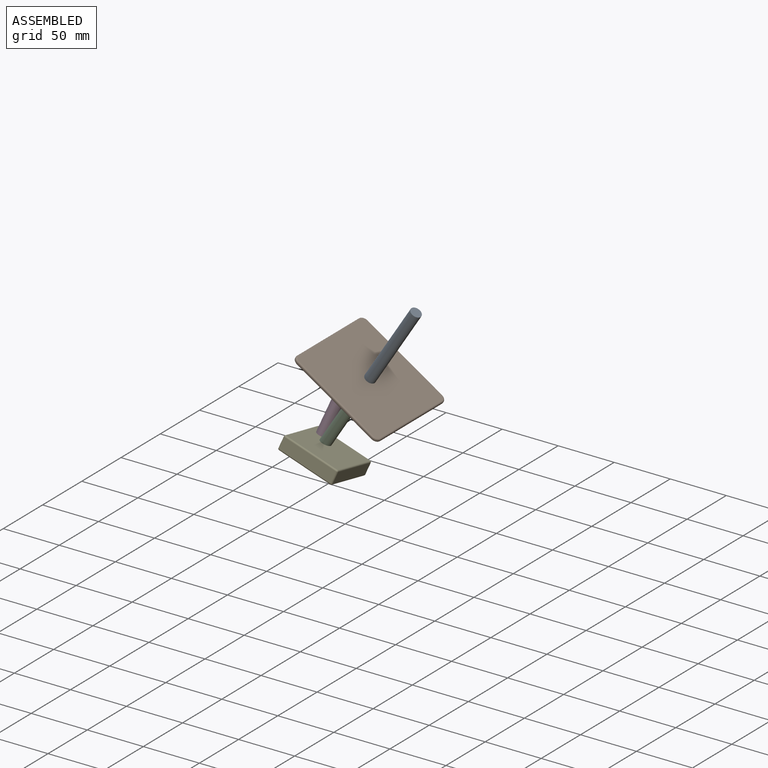
[diagram: assembled view]
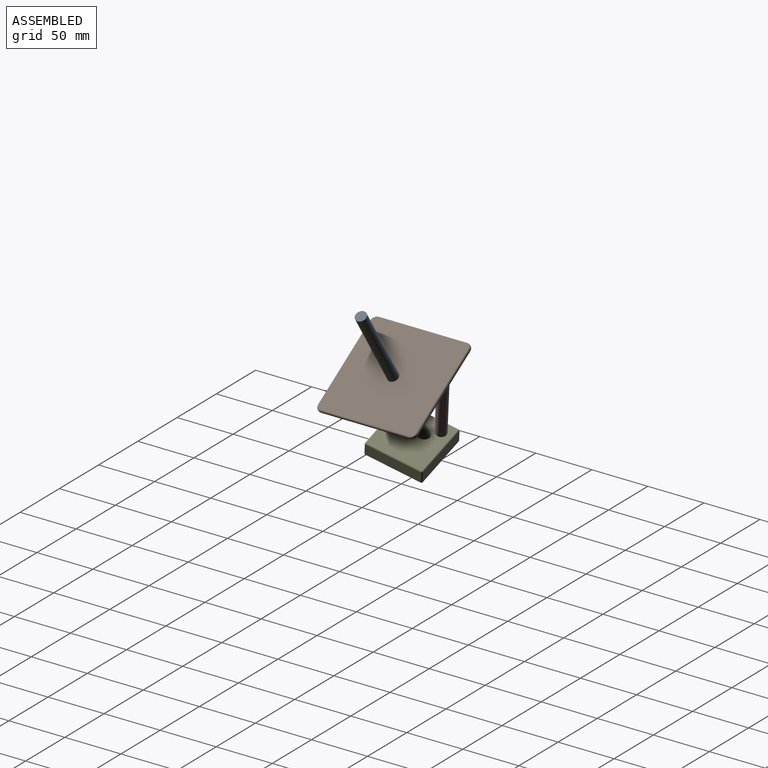
[diagram: assembled view, second angle]
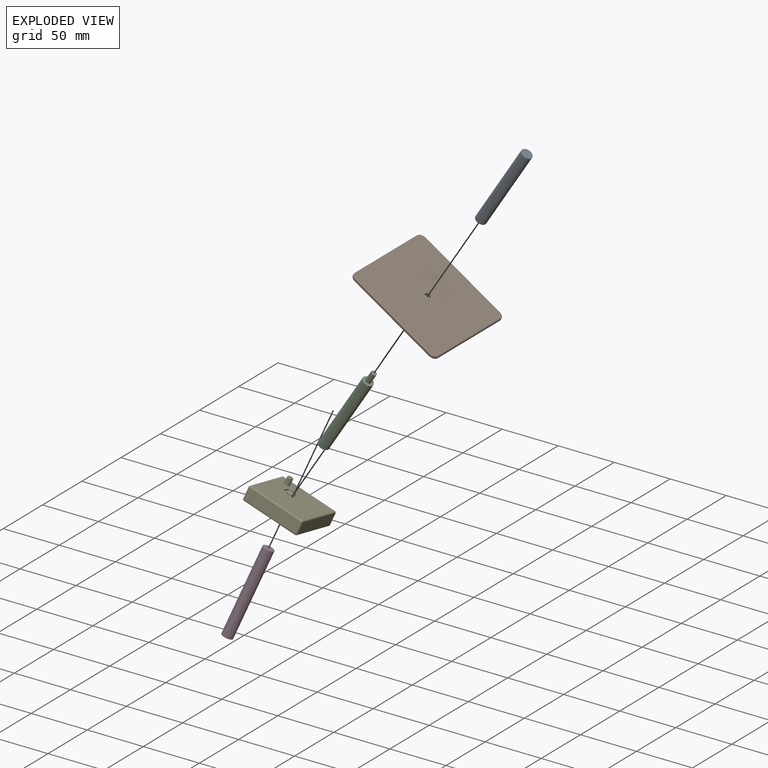
[diagram: exploded view]
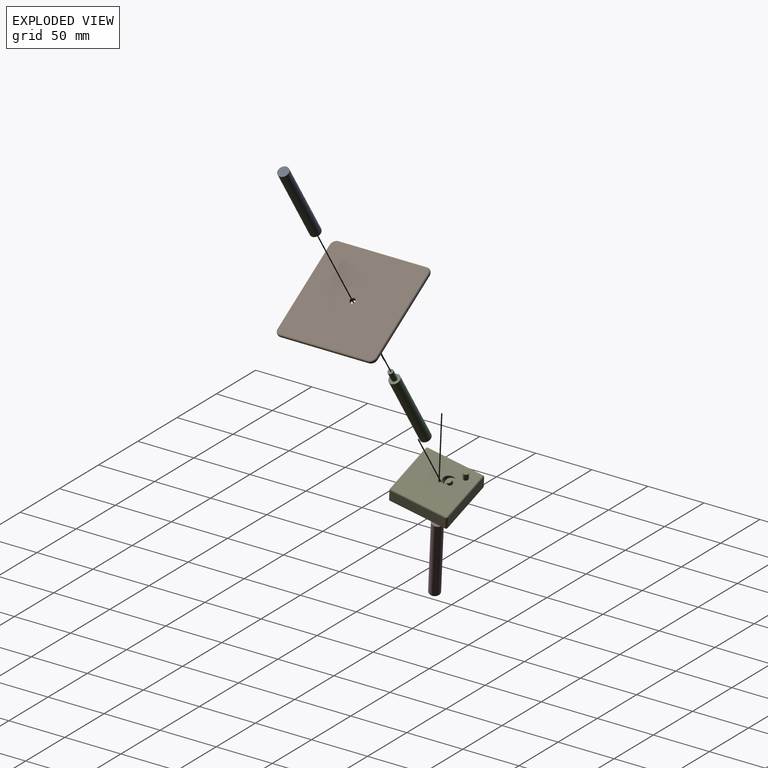
[diagram: exploded view, second angle]
ASSEMBLY  parts=5 mates=8
PART A: 5 faces, bbox 9.5x9.5x76.2 mm
  f0: cylinder r=4.76mm len=76.2mm, axis (0,0,-1), area 2280.2mm2, adj f1,f2
  f1: plane 9.53x9.53mm, normal (0,0,1), area 71.3mm2, adj f0
  f2: plane 9.53x9.53mm, normal (0,0,-1), area 52mm2, adj f0,f3
  f3: cylinder r=2.48mm len=6.35mm, axis (0,0,-1), area 98.8mm2, adj f2,f4
  f4: plane 4.95x4.95mm, normal (0,0,-1), area 19.3mm2, adj f3
PART B: 27 faces, bbox 89.7x89.7x3.2 mm
  f0: plane 78.74x0.64mm, normal (1,0,0), area 50mm2, adj f7,f10,f11,f22
  f1: plane 78.74x0.64mm, normal (0,1,0), area 50mm2, adj f7,f8,f14,f19
  f2: plane 78.74x0.64mm, normal (-1,0,0), area 50mm2, adj f8,f9,f18,f23
  f3: plane 78.74x0.64mm, normal (0,-1,0), area 50mm2, adj f9,f10,f15,f26
  f4: plane 86.36x86.36mm, normal (0,0,1), area 7426.3mm2, adj f6,f11,f12,f13,f14,f15,f16,f17
  f5: plane 86.36x86.36mm, normal (0,0,-1), area 7426.3mm2, adj f6,f19,f20,f21,f22,f23,f24,f25
  f6: cylinder r=2.48mm len=4.95mm, axis (0,0,1), area 49.4mm2, adj f4,f5
  f7: cylinder r=5.08mm len=5.08mm, axis (0,0,1), area 5.1mm2, adj f0,f1,f12,f20
  f8: cylinder r=5.08mm len=5.08mm, axis (0,0,-1), area 5.1mm2, adj f1,f2,f16,f21
  f9: cylinder r=5.08mm len=5.08mm, axis (0,0,1), area 5.1mm2, adj f2,f3,f17,f25
  f10: cylinder r=5.08mm len=5.08mm, axis (0,0,-1), area 5.1mm2, adj f0,f3,f13,f24
  f11: cylinder r=1.27mm len=78.74mm, axis (0,-1,0), area 157.1mm2, adj f0,f4,f12,f13
  f12: torus R=3.81mm, axis (0,0,1), area 14.5mm2, adj f4,f7,f11,f14
  f13: torus R=3.81mm, axis (0,0,1), area 14.5mm2, adj f4,f10,f11,f15
  f14: cylinder r=1.27mm len=78.74mm, axis (1,0,0), area 157.1mm2, adj f1,f4,f12,f16
  f15: cylinder r=1.27mm len=78.74mm, axis (-1,0,0), area 157.1mm2, adj f3,f4,f13,f17
  f16: torus R=3.81mm, axis (0,0,1), area 14.5mm2, adj f4,f8,f14,f18
  f17: torus R=3.81mm, axis (0,0,1), area 14.5mm2, adj f4,f9,f15,f18
  f18: cylinder r=1.27mm len=78.74mm, axis (0,1,0), area 157.1mm2, adj f2,f4,f16,f17
  f19: cylinder r=1.27mm len=78.74mm, axis (-1,0,0), area 157.1mm2, adj f1,f5,f20,f21
  f20: torus R=3.81mm, axis (0,0,1), area 14.5mm2, adj f5,f7,f19,f22
  f21: torus R=3.81mm, axis (0,0,1), area 14.5mm2, adj f5,f8,f19,f23
  f22: cylinder r=1.27mm len=78.74mm, axis (0,1,0), area 157.1mm2, adj f0,f5,f20,f24
  f23: cylinder r=1.27mm len=78.74mm, axis (0,-1,0), area 157.1mm2, adj f2,f5,f21,f25
  f24: torus R=3.81mm, axis (0,0,1), area 14.5mm2, adj f5,f10,f22,f26
  f25: torus R=3.81mm, axis (0,0,1), area 14.5mm2, adj f5,f9,f23,f26
  f26: cylinder r=1.27mm len=78.74mm, axis (1,0,0), area 157.1mm2, adj f3,f5,f24,f25
PART C: 7 faces, bbox 9.5x9.5x83.2 mm
  f0: cylinder r=4.76mm len=73.66mm, axis (0,0,-1), area 2204.2mm2, adj f1,f2
  f1: plane 9.53x9.53mm, normal (0,0,1), area 53.4mm2, adj f0,f3
  f2: plane 9.53x9.53mm, normal (0,0,-1), area 52mm2, adj f0,f5
  f3: cylinder r=2.38mm len=9.53mm, axis (0,0,-1), area 142.5mm2, adj f1,f4
  f4: plane 4.76x4.76mm, normal (0,0,1), area 17.8mm2, adj f3
  f5: cylinder r=2.48mm len=6.35mm, axis (0,0,-1), area 98.8mm2, adj f2,f6
  f6: plane 4.95x4.95mm, normal (0,0,-1), area 19.3mm2, adj f5
PART D: same geometry as A
PART E: 32 faces, bbox 51x51x19.3 mm
  f0: plane 48.26x10.16mm, normal (1,0,0), area 490.3mm2, adj f18,f23,f26,f29
  f1: plane 48.26x10.16mm, normal (0,1,0), area 490.3mm2, adj f15,f24,f25,f29
  f2: plane 48.26x10.16mm, normal (-1,0,0), area 490.3mm2, adj f10,f14,f15,f16
  f3: plane 48.26x10.16mm, normal (0,-1,0), area 490.3mm2, adj f10,f13,f17,f18
  f4: plane 48.49x48.49mm, normal (0,0,1), area 2233.3mm2, adj f6,f13,f14,f23,f24,f30
  f5: plane 48.26x48.26mm, normal (0,0,-1), area 2329mm2, adj f16,f17,f25,f26
  f6: cylinder r=4.83mm len=10.56mm, axis (-0.24,0.24,-0.94), area 96.6mm2, adj f4,f7
  f7: plane 9.37x9.37mm, normal (0.24,-0.24,0.94), area 55.4mm2, adj f6,f8
  f8: cylinder r=2.38mm len=5.39mm, axis (0.24,-0.24,0.94), area 47.5mm2, adj f7,f9
  f9: plane 4.62x4.62mm, normal (0.24,-0.24,0.94), area 17.8mm2, adj f8
  f10: cylinder r=1.27mm len=10.16mm, axis (0,0,1), area 20.3mm2, adj f2,f3,f11,f12
  f11: sphere r=1.27mm, area 2.5mm2, adj f10,f13,f14
  f12: sphere r=1.27mm, area 2.5mm2, adj f10,f16,f17
  f13: cylinder r=1.27mm len=48.26mm, axis (-1,0,0), area 96.3mm2, adj f3,f4,f11,f19
  f14: cylinder r=1.27mm len=48.26mm, axis (0,1,0), area 96.3mm2, adj f2,f4,f11,f20
  f15: cylinder r=1.27mm len=10.16mm, axis (0,0,-1), area 20.3mm2, adj f1,f2,f20,f21
  f16: cylinder r=1.27mm len=48.26mm, axis (0,-1,0), area 96.3mm2, adj f2,f5,f12,f21
  f17: cylinder r=1.27mm len=48.26mm, axis (1,0,0), area 96.3mm2, adj f3,f5,f12,f22
  f18: cylinder r=1.27mm len=10.16mm, axis (0,0,-1), area 20.3mm2, adj f0,f3,f19,f22
  f19: sphere r=1.27mm, area 2.5mm2, adj f13,f18,f23
  f20: sphere r=1.27mm, area 2.5mm2, adj f14,f15,f24
  f21: sphere r=1.27mm, area 2.5mm2, adj f15,f16,f25
  f22: sphere r=1.27mm, area 2.5mm2, adj f17,f18,f26
  f23: cylinder r=1.27mm len=48.26mm, axis (0,-1,0), area 96.3mm2, adj f0,f4,f19,f27
  f24: cylinder r=1.27mm len=48.26mm, axis (1,0,0), area 96.3mm2, adj f1,f4,f20,f27
  f25: cylinder r=1.27mm len=48.26mm, axis (-1,0,0), area 96.3mm2, adj f1,f5,f21,f28
  f26: cylinder r=1.27mm len=48.26mm, axis (0,1,0), area 96.3mm2, adj f0,f5,f22,f28
  f27: sphere r=1.27mm, area 2.5mm2, adj f23,f24,f29
  f28: sphere r=1.27mm, area 2.5mm2, adj f25,f26,f29
  f29: cylinder r=1.27mm len=10.16mm, axis (0,0,1), area 20.3mm2, adj f0,f1,f27,f28
  f30: cylinder r=2.38mm len=6.35mm, axis (0,0,-1), area 95mm2, adj f4,f31
  f31: plane 4.76x4.76mm, normal (0,0,1), area 17.8mm2, adj f30
PLACE A rot(axis=(0,1,0),32.6deg) t=(120.41,-32.29,98.25)mm
PLACE B rot(axis=(0,1,0),32.6deg) t=(99.03,-31.86,64.81)mm
PLACE C rot(axis=(0,1,0),32.6deg) t=(78.32,-32.29,32.45)mm
PLACE D rot(axis=(-0.61,0.79,0.1),23.5deg) t=(62.83,-14.19,39.81)mm
PLACE E rot(axis=(-0.61,0.79,0.1),23.5deg) t=(64.75,-40.03,-2.25)mm
MATE planar D.f0 <-> E.f4  axis (-0.31,-0.25,-0.92) through (51.05,-23.68,4.84)mm
MATE planar B.f5 <-> C.f0  axis (-0.54,0,-0.84) through (98.17,-31.85,63.48)mm
MATE planar B.f4 <-> A.f0  axis (0.54,0,0.84) through (99.88,-31.85,66.15)mm
MATE cylindrical A.f3 <-> C.f3  axis (-0.54,0,-0.84) through (101.59,-32.29,68.83)mm
MATE cylindrical D.f3 <-> E.f30  axis (-0.31,-0.25,-0.92) through (52.04,-22.89,7.75)mm
MATE cylindrical C.f3 <-> B.f6  axis (-0.54,0,-0.84) through (100.74,-32.29,67.49)mm
MATE planar E.f6 <-> C.f0  axis (0.54,0,0.84) through (58.47,-32.29,1.43)mm
MATE cylindrical E.f6 <-> C.f0  axis (-0.54,0,-0.84) through (59.81,-32.29,3.52)mm
